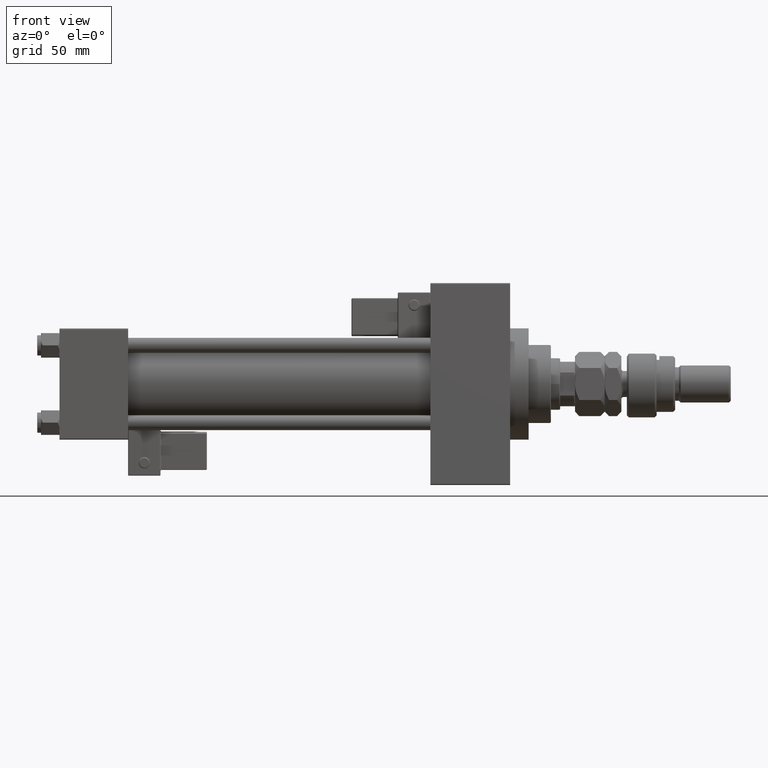
[diagram: clean part render]
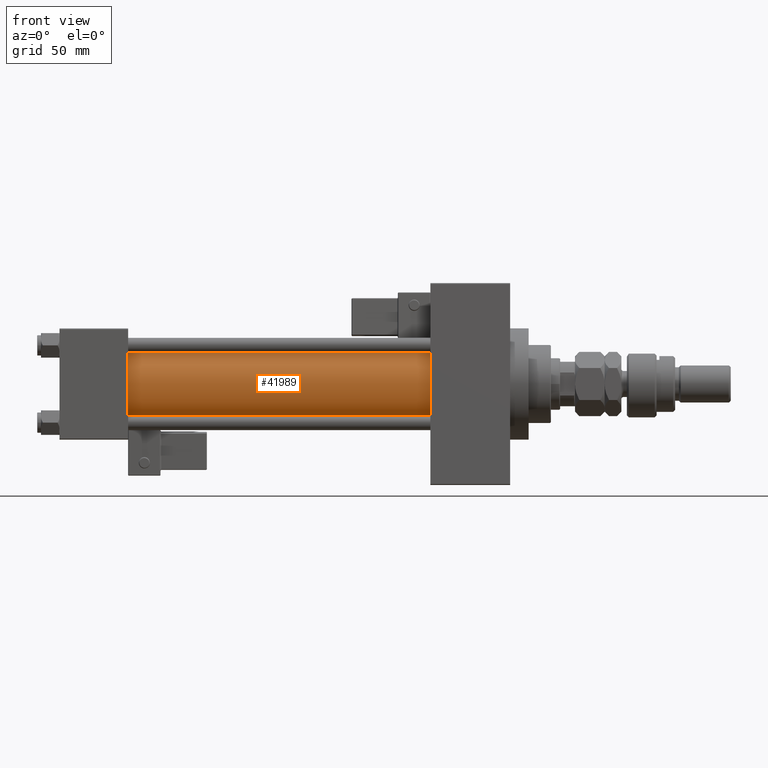
[diagram: same view with one face highlighted and labeled with its STEP entity id]
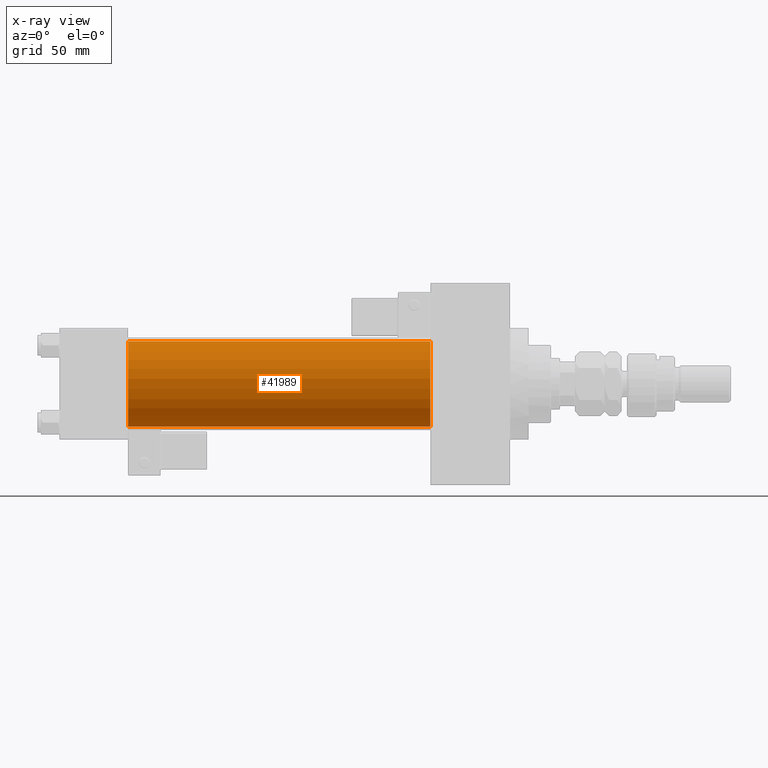
[diagram: x-ray of the same camera — body ghosted, the highlighted face saturated]
A machine part, front view. The second image highlights one B-rep face of the part: STEP entity #41989.
The next image is the same camera in x-ray: the body ghosted, the highlighted face saturated — about 0% of this face is hidden behind the body in this view.
In plain terms, the highlighted cylindrical surface (partial cylindrical patch) has radius 23 mm, axis along (-1, -0, -0).
Its self-contained STEP definition (entity closure, byte-faithful):
#1887 = DIRECTION ( 'NONE',  ( 0.000000000000000000, 0.000000000000000000, 1.000000000000000000 ) ) ;
#2101 = CIRCLE ( 'NONE', #49659, 23.00000000000000000 ) ;
#3143 = ORIENTED_EDGE ( 'NONE', *, *, #24688, .T. ) ;
#5789 = CIRCLE ( 'NONE', #15960, 23.00000000000000000 ) ;
#6022 = CARTESIAN_POINT ( 'NONE',  ( 37.00000000000000711, 2.146024240737016609E-16, -23.00000000000000000 ) ) ;
#6133 = CARTESIAN_POINT ( 'NONE',  ( 200.0000000000000000, -2.602085213965210642E-15, 0.000000000000000000 ) ) ;
#6245 = VECTOR ( 'NONE', #32747, 1000.000000000000000 ) ;
#10451 = VERTEX_POINT ( 'NONE', #16059 ) ;
#11287 = CARTESIAN_POINT ( 'NONE',  ( 200.0000000000000000, -2.602085213965210642E-15, 23.00000000000000000 ) ) ;
#11385 = ORIENTED_EDGE ( 'NONE', *, *, #11787, .F. ) ;
#11787 = EDGE_CURVE ( 'NONE', #10451, #24897, #5789, .T. ) ;
#12755 = VERTEX_POINT ( 'NONE', #37228 ) ;
#15960 = AXIS2_PLACEMENT_3D ( 'NONE', #18865, #51824, #27634 ) ;
#16059 = CARTESIAN_POINT ( 'NONE',  ( 200.0000000000000000, -2.602085213965210642E-15, 23.00000000000000000 ) ) ;
#17578 = CYLINDRICAL_SURFACE ( 'NONE', #36842, 23.00000000000000000 ) ;
#18355 = FACE_OUTER_BOUND ( 'NONE', #49561, .T. ) ;
#18708 = DIRECTION ( 'NONE',  ( -1.000000000000000000, -0.000000000000000000, -0.000000000000000000 ) ) ;
#18865 = CARTESIAN_POINT ( 'NONE',  ( 200.0000000000000000, -2.602085213965210642E-15, 0.000000000000000000 ) ) ;
#24516 = LINE ( 'NONE', #40483, #6245 ) ;
#24688 = EDGE_CURVE ( 'NONE', #10451, #12755, #39980, .T. ) ;
#24897 = VERTEX_POINT ( 'NONE', #26353 ) ;
#26353 = CARTESIAN_POINT ( 'NONE',  ( 200.0000000000000000, 2.146024240737016609E-16, -23.00000000000000000 ) ) ;
#26399 = VECTOR ( 'NONE', #18708, 1000.000000000000000 ) ;
#27634 = DIRECTION ( 'NONE',  ( 0.000000000000000000, 0.000000000000000000, -1.000000000000000000 ) ) ;
#29006 = ORIENTED_EDGE ( 'NONE', *, *, #29239, .T. ) ;
#29239 = EDGE_CURVE ( 'NONE', #12755, #34123, #2101, .T. ) ;
#30036 = DIRECTION ( 'NONE',  ( 1.000000000000000000, -0.000000000000000000, 0.000000000000000000 ) ) ;
#32747 = DIRECTION ( 'NONE',  ( -1.000000000000000000, -0.000000000000000000, -0.000000000000000000 ) ) ;
#34123 = VERTEX_POINT ( 'NONE', #6022 ) ;
#36842 = AXIS2_PLACEMENT_3D ( 'NONE', #6133, #38572, #1887 ) ;
#37228 = CARTESIAN_POINT ( 'NONE',  ( 37.00000000000000711, -2.602085213965210642E-15, 23.00000000000000000 ) ) ;
#38572 = DIRECTION ( 'NONE',  ( -1.000000000000000000, -0.000000000000000000, -0.000000000000000000 ) ) ;
#39980 = LINE ( 'NONE', #11287, #26399 ) ;
#40483 = CARTESIAN_POINT ( 'NONE',  ( 200.0000000000000000, 2.146024240737016609E-16, -23.00000000000000000 ) ) ;
#41717 = ORIENTED_EDGE ( 'NONE', *, *, #41889, .F. ) ;
#41889 = EDGE_CURVE ( 'NONE', #24897, #34123, #24516, .T. ) ;
#41989 = ADVANCED_FACE ( 'NONE', ( #18355 ), #17578, .T. ) ;
#42549 = CARTESIAN_POINT ( 'NONE',  ( 37.00000000000000711, -2.602085213965210642E-15, 0.000000000000000000 ) ) ;
#47054 = DIRECTION ( 'NONE',  ( 0.000000000000000000, 0.000000000000000000, 1.000000000000000000 ) ) ;
#49561 = EDGE_LOOP ( 'NONE', ( #41717, #11385, #3143, #29006 ) ) ;
#49659 = AXIS2_PLACEMENT_3D ( 'NONE', #42549, #30036, #47054 ) ;
#51824 = DIRECTION ( 'NONE',  ( 1.000000000000000000, 0.000000000000000000, 0.000000000000000000 ) ) ;